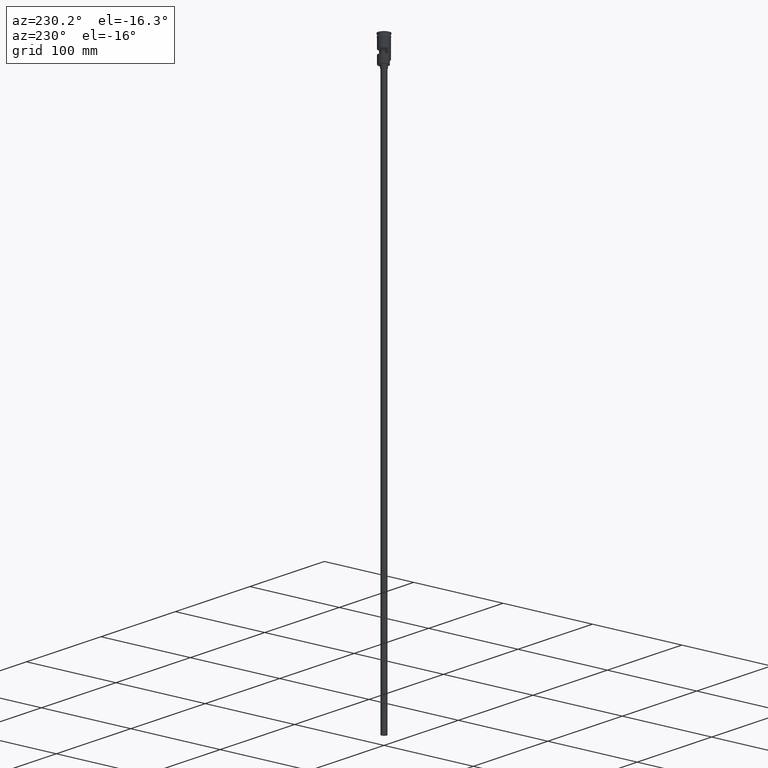
[diagram: clean part render]
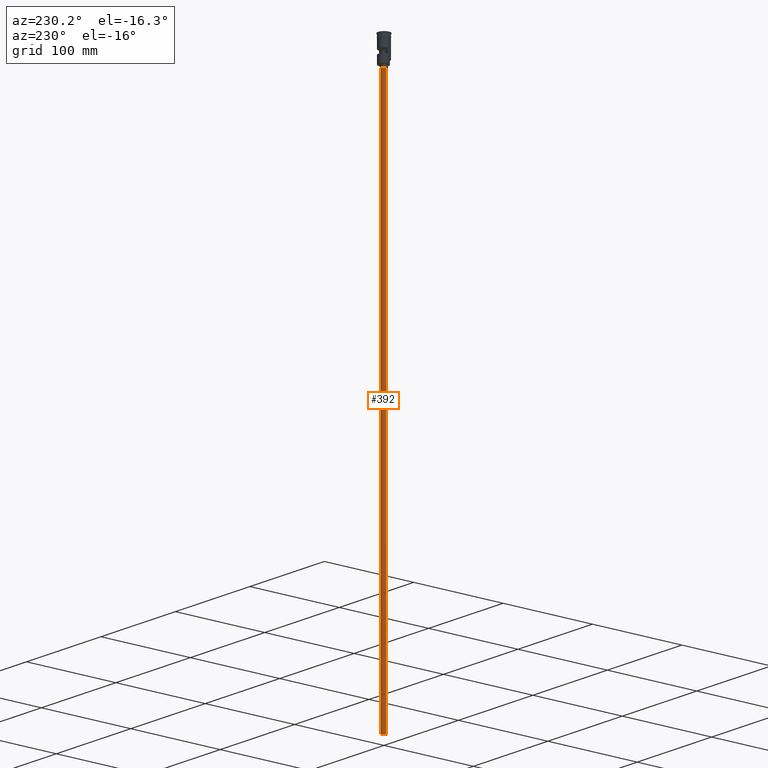
[diagram: same view with one face highlighted and labeled with its STEP entity id]
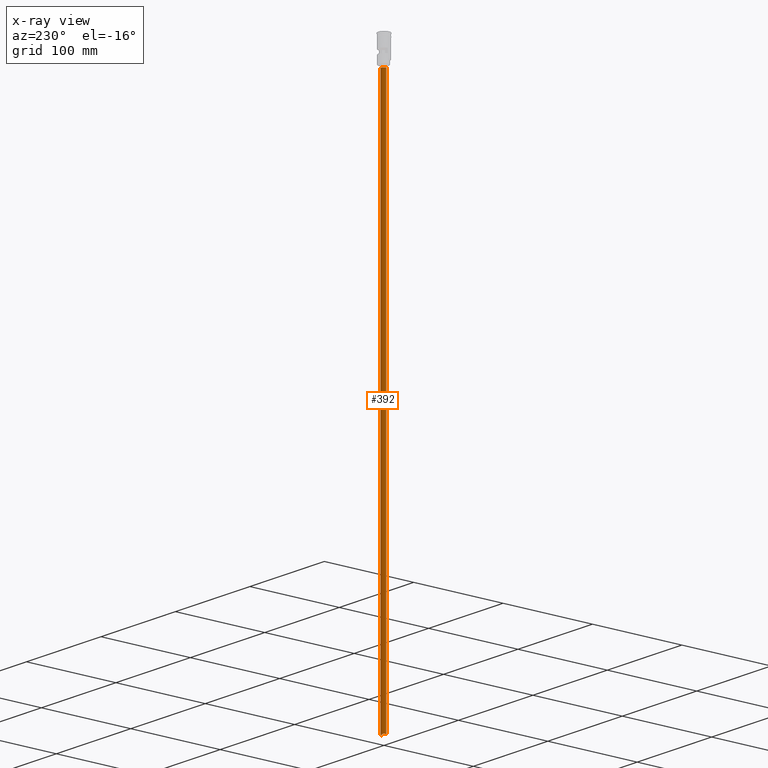
[diagram: x-ray of the same camera — body ghosted, the highlighted face saturated]
A machine part, auxiliary view. The second image highlights one B-rep face of the part: STEP entity #392.
The next image is the same camera in x-ray: the body ghosted, the highlighted face saturated — about 0% of this face is hidden behind the body in this view.
In plain terms, the highlighted cylindrical surface (edge-blend (fillet) strip) has radius 3 mm, axis along (-0, -0, 1).
Its self-contained STEP definition (entity closure, byte-faithful):
#41 = VECTOR ( 'NONE', #763, 1000.000000000000000 ) ;
#88 = DIRECTION ( 'NONE',  ( 0.000000000000000000, 0.000000000000000000, -1.000000000000000000 ) ) ;
#138 = CARTESIAN_POINT ( 'NONE',  ( 0.000000000000000000, 0.000000000000000000, -628.5000000000000000 ) ) ;
#172 = DIRECTION ( 'NONE',  ( -0.000000000000000000, -0.000000000000000000, 1.000000000000000000 ) ) ;
#252 = CARTESIAN_POINT ( 'NONE',  ( 0.000000000000000000, 0.000000000000000000, -628.5000000000000000 ) ) ;
#269 = VERTEX_POINT ( 'NONE', #360 ) ;
#290 = FACE_OUTER_BOUND ( 'NONE', #1499, .T. ) ;
#331 = VECTOR ( 'NONE', #172, 1000.000000000000000 ) ;
#360 = CARTESIAN_POINT ( 'NONE',  ( 3.000000000000000444, 0.000000000000000000, -31.50000000000000000 ) ) ;
#371 = EDGE_CURVE ( 'NONE', #1215, #1174, #902, .T. ) ;
#392 = ADVANCED_FACE ( 'NONE', ( #290 ), #777, .T. ) ;
#410 = CIRCLE ( 'NONE', #513, 3.000000000000000444 ) ;
#504 = DIRECTION ( 'NONE',  ( -1.000000000000000000, 0.000000000000000000, 0.000000000000000000 ) ) ;
#513 = AXIS2_PLACEMENT_3D ( 'NONE', #1101, #88, #504 ) ;
#600 = ORIENTED_EDGE ( 'NONE', *, *, #1133, .F. ) ;
#624 = VERTEX_POINT ( 'NONE', #650 ) ;
#642 = DIRECTION ( 'NONE',  ( 1.000000000000000000, 0.000000000000000000, 0.000000000000000000 ) ) ;
#650 = CARTESIAN_POINT ( 'NONE',  ( 3.000000000000000444, 0.000000000000000000, -628.5000000000000000 ) ) ;
#687 = AXIS2_PLACEMENT_3D ( 'NONE', #252, #1239, #987 ) ;
#733 = CARTESIAN_POINT ( 'NONE',  ( -3.000000000000000444, 3.673940397442060361E-16, -628.5000000000000000 ) ) ;
#763 = DIRECTION ( 'NONE',  ( -0.000000000000000000, -0.000000000000000000, 1.000000000000000000 ) ) ;
#777 = CYLINDRICAL_SURFACE ( 'NONE', #1254, 3.000000000000000444 ) ;
#804 = CARTESIAN_POINT ( 'NONE',  ( 3.000000000000000444, 0.000000000000000000, -628.5000000000000000 ) ) ;
#876 = CARTESIAN_POINT ( 'NONE',  ( -3.000000000000000444, 3.673940397442060361E-16, -628.5000000000000000 ) ) ;
#879 = EDGE_CURVE ( 'NONE', #1174, #269, #410, .T. ) ;
#885 = CIRCLE ( 'NONE', #687, 3.000000000000000444 ) ;
#902 = LINE ( 'NONE', #876, #41 ) ;
#984 = ORIENTED_EDGE ( 'NONE', *, *, #371, .T. ) ;
#987 = DIRECTION ( 'NONE',  ( -1.000000000000000000, 0.000000000000000000, 0.000000000000000000 ) ) ;
#1101 = CARTESIAN_POINT ( 'NONE',  ( 0.000000000000000000, 0.000000000000000000, -31.50000000000000000 ) ) ;
#1129 = DIRECTION ( 'NONE',  ( -0.000000000000000000, -0.000000000000000000, 1.000000000000000000 ) ) ;
#1133 = EDGE_CURVE ( 'NONE', #624, #269, #1418, .T. ) ;
#1174 = VERTEX_POINT ( 'NONE', #1461 ) ;
#1209 = ORIENTED_EDGE ( 'NONE', *, *, #1242, .F. ) ;
#1215 = VERTEX_POINT ( 'NONE', #733 ) ;
#1239 = DIRECTION ( 'NONE',  ( 0.000000000000000000, 0.000000000000000000, -1.000000000000000000 ) ) ;
#1242 = EDGE_CURVE ( 'NONE', #1215, #624, #885, .T. ) ;
#1250 = ORIENTED_EDGE ( 'NONE', *, *, #879, .T. ) ;
#1254 = AXIS2_PLACEMENT_3D ( 'NONE', #138, #1129, #642 ) ;
#1418 = LINE ( 'NONE', #804, #331 ) ;
#1461 = CARTESIAN_POINT ( 'NONE',  ( -3.000000000000000444, 3.673940397442060361E-16, -31.50000000000000000 ) ) ;
#1499 = EDGE_LOOP ( 'NONE', ( #1209, #984, #1250, #600 ) ) ;